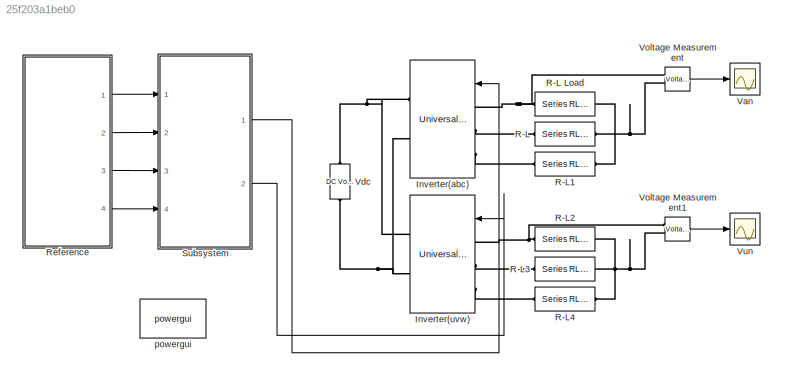
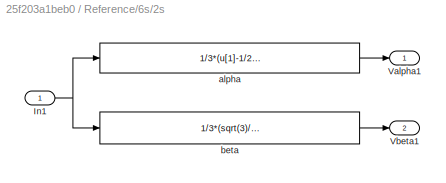
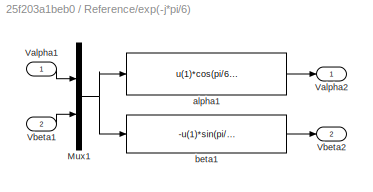
MODEL slx_25f203a1beb0
KIND model
CONFIG InitFcn = Vm=0.5;\nFc=3000;
BLOCK [Reference] Inverter(abc)  REF=powerlib/Power
Electronics/Universal Bridge
  Arms = 3
  Device = IGBT / Diodes
  ForwardVoltage = 0
  ForwardVoltages = [  0  0  ]
  GTOparameters = [ 10e-6 , 20e-6 ]
  IGBTparameters = [ 1e-6 , 2e-6 ]
  Lon = 0
  Measurements = None
  Measurements_2 = None
  Ports = [1, 0, 0, 0, 0, 3, 2]
  Ron = 1e-3
  SnubberCapacitance = inf
  SnubberResistance = 1e5
  SourceBlock = powerlib/Power\nElectronics/Universal Bridge
  SourceType = Universal Bridge
  converterType = Rectifier
BLOCK [Reference] Inverter(uvw)  REF=powerlib/Power
Electronics/Universal Bridge
  Arms = 3
  Device = IGBT / Diodes
  ForwardVoltage = 0
  ForwardVoltages = [  0  0  ]
  GTOparameters = [ 10e-6 , 20e-6 ]
  IGBTparameters = [ 1e-6 , 2e-6 ]
  Lon = 0
  Measurements = None
  Measurements_2 = None
  Ports = [1, 0, 0, 0, 0, 3, 2]
  Ron = 1e-3
  SnubberCapacitance = inf
  SnubberResistance = 1e5
  SourceBlock = powerlib/Power\nElectronics/Universal Bridge
  SourceType = Universal Bridge
  converterType = Rectifier
BLOCK [Reference] R-L  REF=powerlib/Elements/Series RLC Branch
  AttributesFormatString = \n
  BranchType = RL
  Capacitance = []
  Inductance = 1e-03
  InitialCurrent = 0
  InitialVoltage = 0
  LConnTagsString = __new0
  Measurements = None
  Ports = [0, 0, 0, 0, 0, 1, 1]
  RConnTagsString = __new0
  Resistance = 10
  SetiL0 = off
  Setx0 = off
  SourceBlock = powerlib/Elements/Series RLC Branch
  SourceType = Series RLC Branch
BLOCK [Reference] R-L Load  REF=powerlib/Elements/Series RLC Branch
  AttributesFormatString = \n
  BranchType = RL
  Capacitance = []
  Inductance = 1e-03
  InitialCurrent = 0
  InitialVoltage = 0
  LConnTagsString = __new0
  Measurements = None
  Ports = [0, 0, 0, 0, 0, 1, 1]
  RConnTagsString = __new0
  Resistance = 10
  SetiL0 = off
  Setx0 = off
  SourceBlock = powerlib/Elements/Series RLC Branch
  SourceType = Series RLC Branch
BLOCK [Reference] R-L1  REF=powerlib/Elements/Series RLC Branch
  AttributesFormatString = \n
  BranchType = RL
  Capacitance = []
  Inductance = 1e-03
  InitialCurrent = 0
  InitialVoltage = 0
  LConnTagsString = __new0
  Measurements = None
  Ports = [0, 0, 0, 0, 0, 1, 1]
  RConnTagsString = __new0
  Resistance = 10
  SetiL0 = off
  Setx0 = off
  SourceBlock = powerlib/Elements/Series RLC Branch
  SourceType = Series RLC Branch
BLOCK [Reference] R-L2  REF=powerlib/Elements/Series RLC Branch
  AttributesFormatString = \n
  BranchType = RL
  Capacitance = []
  Inductance = 1e-03
  InitialCurrent = 0
  InitialVoltage = 0
  LConnTagsString = __new0
  Measurements = None
  Ports = [0, 0, 0, 0, 0, 1, 1]
  RConnTagsString = __new0
  Resistance = 10
  SetiL0 = off
  Setx0 = off
  SourceBlock = powerlib/Elements/Series RLC Branch
  SourceType = Series RLC Branch
BLOCK [Reference] R-L3  REF=powerlib/Elements/Series RLC Branch
  AttributesFormatString = \n
  BranchType = RL
  Capacitance = []
  Inductance = 1e-03
  InitialCurrent = 0
  InitialVoltage = 0
  LConnTagsString = __new0
  Measurements = None
  Ports = [0, 0, 0, 0, 0, 1, 1]
  RConnTagsString = __new0
  Resistance = 10
  SetiL0 = off
  Setx0 = off
  SourceBlock = powerlib/Elements/Series RLC Branch
  SourceType = Series RLC Branch
BLOCK [Reference] R-L4  REF=powerlib/Elements/Series RLC Branch
  AttributesFormatString = \n
  BranchType = RL
  Capacitance = []
  Inductance = 1e-03
  InitialCurrent = 0
  InitialVoltage = 0
  LConnTagsString = __new0
  Measurements = None
  Ports = [0, 0, 0, 0, 0, 1, 1]
  RConnTagsString = __new0
  Resistance = 10
  SetiL0 = off
  Setx0 = off
  SourceBlock = powerlib/Elements/Series RLC Branch
  SourceType = Series RLC Branch
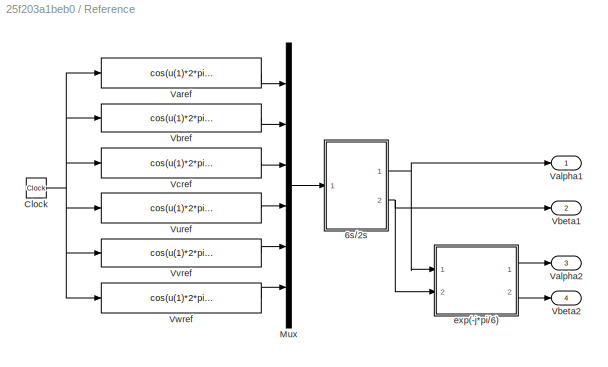
BLOCK [SubSystem] Reference
  Ports = [0, 4]
  RequestExecContextInheritance = off
BLOCK [SubSystem] Reference/6s//2s
  Ports = [1, 2]
  RequestExecContextInheritance = off
BLOCK [Inport] Reference/6s//2s/In1
  IconDisplay = Port number
BLOCK [Outport] Reference/6s//2s/Valpha1
  IconDisplay = Port number
BLOCK [Outport] Reference/6s//2s/Vbeta1
  IconDisplay = Port number
  Port = 2
BLOCK [Fcn] Reference/6s//2s/alpha
  Expr = 1/3*(u[1]-1/2*u[2]-1/2*u[3]+sqrt(3)/2*u[4]-sqrt(3)/2*u[5])
BLOCK [Fcn] Reference/6s//2s/beta
  Expr = 1/3*(sqrt(3)/2*u[2]-sqrt(3)/2*u[3]+1/2*u[4]+1/2*u[5]-u[6])
BLOCK [Clock] Reference/Clock
BLOCK [Mux] Reference/Mux
  DisplayOption = bar
  Inputs = 6
  Ports = [6, 1]
BLOCK [Outport] Reference/Valpha1
  IconDisplay = Port number
BLOCK [Outport] Reference/Valpha2
  IconDisplay = Port number
  Port = 3
BLOCK [Fcn] Reference/Varef
  Expr = cos(u(1)*2*pi*50)*Vm
BLOCK [Outport] Reference/Vbeta1
  IconDisplay = Port number
  Port = 2
BLOCK [Outport] Reference/Vbeta2
  IconDisplay = Port number
  Port = 4
BLOCK [Fcn] Reference/Vbref
  Expr = cos(u(1)*2*pi*50-2*pi/3)*Vm
BLOCK [Fcn] Reference/Vcref
  Expr = cos(u(1)*2*pi*50+2*pi/3)*Vm
BLOCK [Fcn] Reference/Vuref
  Expr = cos(u(1)*2*pi*50-pi/6)*Vm
BLOCK [Fcn] Reference/Vvref
  Expr = cos(u(1)*2*pi*50-5*pi/6)*Vm
BLOCK [Fcn] Reference/Vwref
  Expr = cos(u(1)*2*pi*50+pi/2)*Vm
BLOCK [SubSystem] Reference/exp(-j*pi//6)
  Ports = [2, 2]
  RequestExecContextInheritance = off
BLOCK [Mux] Reference/exp(-j*pi//6)/Mux1
  DisplayOption = bar
  Inputs = 2
  Ports = [2, 1]
BLOCK [Inport] Reference/exp(-j*pi//6)/Valpha1
  IconDisplay = Port number
BLOCK [Outport] Reference/exp(-j*pi//6)/Valpha2
  IconDisplay = Port number
BLOCK [Inport] Reference/exp(-j*pi//6)/Vbeta1
  IconDisplay = Port number
  Port = 2
BLOCK [Outport] Reference/exp(-j*pi//6)/Vbeta2
  IconDisplay = Port number
  Port = 2
BLOCK [Fcn] Reference/exp(-j*pi//6)/alpha1
  Expr = u(1)*cos(pi/6)+u(2)*sin(pi/6)
BLOCK [Fcn] Reference/exp(-j*pi//6)/beta1
  Expr = -u(1)*sin(pi/6)+u(2)*cos(pi/6)
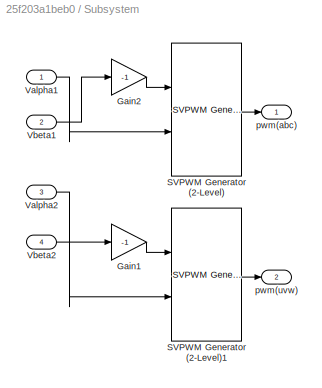
BLOCK [SubSystem] Subsystem
  Ports = [4, 2]
  RequestExecContextInheritance = off
BLOCK [Gain] Subsystem/Gain1
  Gain = -1
  OutDataTypeStr = Inherit: Inherit via internal rule
  ParamDataTypeStr = Inherit: Inherit via internal rule
  SaturateOnIntegerOverflow = off
BLOCK [Gain] Subsystem/Gain2
  Gain = -1
  OutDataTypeStr = Inherit: Inherit via internal rule
  ParamDataTypeStr = Inherit: Inherit via internal rule
  SaturateOnIntegerOverflow = off
BLOCK [Reference] Subsystem/SVPWM Generator (2-Level)  REF=powerlib_meascontrol/Pulse & Signal
Generators/SVPWM Generator
(2-Level)
  Fc = 5000
  InputType = alpha-beta components
  ParUref = [0.8 -30 50]
  Ports = [2, 1]
  SourceBlock = powerlib_meascontrol/Pulse & Signal\nGenerators/SVPWM Generator\n(2-Level)
  SourceType = SVPWM Generator (2-Level)
  SwitchingPattern = Pattern #1
  Ts = 0
BLOCK [Reference] Subsystem/SVPWM Generator (2-Level)1  REF=powerlib_meascontrol/Pulse & Signal
Generators/SVPWM Generator
(2-Level)
  Fc = 5000
  InputType = alpha-beta components
  ParUref = [0.8 -30 50]
  Ports = [2, 1]
  SourceBlock = powerlib_meascontrol/Pulse & Signal\nGenerators/SVPWM Generator\n(2-Level)
  SourceType = SVPWM Generator (2-Level)
  SwitchingPattern = Pattern #1
  Ts = 0
BLOCK [Inport] Subsystem/Valpha1
  IconDisplay = Port number
BLOCK [Inport] Subsystem/Valpha2
  IconDisplay = Port number
  Port = 3
BLOCK [Inport] Subsystem/Vbeta1
  IconDisplay = Port number
  Port = 2
BLOCK [Inport] Subsystem/Vbeta2
  IconDisplay = Port number
  Port = 4
BLOCK [Outport] Subsystem/pwm(abc)
  IconDisplay = Port number
BLOCK [Outport] Subsystem/pwm(uvw)
  IconDisplay = Port number
  Port = 2
BLOCK [Scope] Van
  DataFormat = StructureWithTime
  Floating = off
  LimitDataPoints = off
  NumInputPorts = 1
  Ports = [1]
  SampleInput = on
  SampleTime = 1e-6
  SaveName = Van
  SaveToWorkspace = on
  ShowLegends = off
  TimeRange = 0.05
  YMax = 200
  YMin = -200
BLOCK [Reference] Vdc  REF=powerlib/Electrical
Sources/DC Voltage Source
  Amplitude = 300
  Measurements = None
  Ports = [0, 0, 0, 0, 0, 1, 1]
  SourceBlock = powerlib/Electrical\nSources/DC Voltage Source
  SourceType = DC Voltage Source
BLOCK [Reference] Voltage Measurement  REF=powerlib/Measurements/Voltage Measurement
  OutputType = Complex
  PSBequivalent = 0
  PhasorSimulation = off
  Ports = [0, 1, 0, 0, 0, 2]
  SourceBlock = powerlib/Measurements/Voltage Measurement
  SourceType = Voltage Measurement
BLOCK [Reference] Voltage Measurement1  REF=powerlib/Measurements/Voltage Measurement
  OutputType = Complex
  PSBequivalent = 0
  PhasorSimulation = off
  Ports = [0, 1, 0, 0, 0, 2]
  SourceBlock = powerlib/Measurements/Voltage Measurement
  SourceType = Voltage Measurement
BLOCK [Scope] Vun
  DataFormat = StructureWithTime
  Floating = off
  LimitDataPoints = off
  NumInputPorts = 1
  Ports = [1]
  SampleInput = on
  SampleTime = 1e-6
  SaveName = Vbn
  SaveToWorkspace = on
  ShowLegends = off
  YMax = 200
  YMin = -200
BLOCK [Reference] powergui  REF=powerlib/powergui
  DisableRonSwitches = off
  DisableSnubberDevices = off
  DisableVfSwitches = off
  DisplayEquations = off
  DisplayStyle = 1
  EnableUseOfTLC = off
  ErrMax = 1e-4
  Frange = [0:2:500]
  FreqAxis = off
  FunctionMessages = off
  HookPort = off
  Interpol = off
  Iterations = 50
  MaxFrequency = 1000
  Pbase = 100e6
  Ports = []
  Priority = 1
  ResistiveCurrentMeasurement = off
  RestoreLinks = warning
  RmsSteady = 1
  SPID = off
  SampleTime = 50e-6
  ShowGrid = off
  SolverType = Tustin/Backward Euler (TBE)
  SourceBlock = powerlib/powergui
  SourceType = PSB option menu block
  StartTime = 0.0
  SwTol = 0
  Ts = 100
  UnitsV = kV
  UnitsW = MW
  UserDataPersistent = on
  Xlog = on
  Ylog = off
  ZoomFFT = off
  cycles = 1
  display = off
  echomessages = off
  frequency = 60
  frequencyindice = 0
  frequencyindicesteady = 1
  fundamental = 60
  methode = off
  save = off
  structure = 0
  variable = ZData
  x0status = blocks
NET Reference/6s//2s/In1:1 -> Reference/6s//2s/alpha:1, Reference/6s//2s/beta:1
LINE Reference/6s//2s/alpha:1 -> Reference/6s//2s/Valpha1:1
LINE Reference/6s//2s/beta:1 -> Reference/6s//2s/Vbeta1:1
NET Reference/6s//2s:1 -> Reference/Valpha1:1, Reference/exp(-j*pi//6):1
NET Reference/6s//2s:2 -> Reference/Vbeta1:1, Reference/exp(-j*pi//6):2
NET Reference/Clock:1 -> Reference/Varef:1, Reference/Vbref:1, Reference/Vcref:1, Reference/Vuref:1, Reference/Vvref:1, Reference/Vwref:1
LINE Reference/Mux:1 -> Reference/6s//2s:1
LINE Reference/Varef:1 -> Reference/Mux:1
LINE Reference/Vbref:1 -> Reference/Mux:2
LINE Reference/Vcref:1 -> Reference/Mux:3
LINE Reference/Vuref:1 -> Reference/Mux:4
LINE Reference/Vvref:1 -> Reference/Mux:5
LINE Reference/Vwref:1 -> Reference/Mux:6
NET Reference/exp(-j*pi//6)/Mux1:1 -> Reference/exp(-j*pi//6)/alpha1:1, Reference/exp(-j*pi//6)/beta1:1
LINE Reference/exp(-j*pi//6)/Valpha1:1 -> Reference/exp(-j*pi//6)/Mux1:1
LINE Reference/exp(-j*pi//6)/Vbeta1:1 -> Reference/exp(-j*pi//6)/Mux1:2
LINE Reference/exp(-j*pi//6)/alpha1:1 -> Reference/exp(-j*pi//6)/Valpha2:1
LINE Reference/exp(-j*pi//6)/beta1:1 -> Reference/exp(-j*pi//6)/Vbeta2:1
LINE Reference/exp(-j*pi//6):1 -> Reference/Valpha2:1
LINE Reference/exp(-j*pi//6):2 -> Reference/Vbeta2:1
LINE Reference:1 -> Subsystem:1
LINE Reference:2 -> Subsystem:2
LINE Reference:3 -> Subsystem:3
LINE Reference:4 -> Subsystem:4
LINE Subsystem/Gain1:1 -> Subsystem/SVPWM Generator (2-Level)1:1
LINE Subsystem/Gain2:1 -> Subsystem/SVPWM Generator (2-Level):1
LINE Subsystem/SVPWM Generator (2-Level)1:1 -> Subsystem/pwm(uvw):1
LINE Subsystem/SVPWM Generator (2-Level):1 -> Subsystem/pwm(abc):1
LINE Subsystem/Valpha1:1 -> Subsystem/SVPWM Generator (2-Level):2
LINE Subsystem/Valpha2:1 -> Subsystem/SVPWM Generator (2-Level)1:2
LINE Subsystem/Vbeta1:1 -> Subsystem/Gain2:1
LINE Subsystem/Vbeta2:1 -> Subsystem/Gain1:1
LINE Subsystem:1 -> Inverter(abc):1
LINE Subsystem:2 -> Inverter(uvw):1
LINE Voltage Measurement1:1 -> Vun:1
LINE Voltage Measurement:1 -> Van:1
PNET net1: Inverter(abc):LConn1 -- R-L Load:LConn1 -- Voltage Measurement:LConn1
PLINE Inverter(abc):LConn2 -- R-L:LConn1
PLINE Inverter(abc):LConn3 -- R-L1:LConn1
PNET net2: Inverter(abc):RConn1 -- Inverter(uvw):RConn1 -- Vdc:RConn1
PNET net3: Inverter(abc):RConn2 -- Inverter(uvw):RConn2 -- Vdc:LConn1
PNET net4: Inverter(uvw):LConn1 -- R-L2:LConn1 -- Voltage Measurement1:LConn1
PLINE Inverter(uvw):LConn2 -- R-L3:LConn1
PLINE Inverter(uvw):LConn3 -- R-L4:LConn1
PNET net5: R-L Load:RConn1 -- R-L1:RConn1 -- R-L:RConn1 -- Voltage Measurement:LConn2
PNET net6: R-L2:RConn1 -- R-L3:RConn1 -- R-L4:RConn1 -- Voltage Measurement1:LConn2
note: NET lines group one-source signal fan-out (src -> all destinations, sorted); 1:1 wires keep LINE; PNET lines group multi-terminal physical nets as a canonical sorted terminal list (undirected conserving connections); 2-terminal nets keep the pairwise PLINE form
